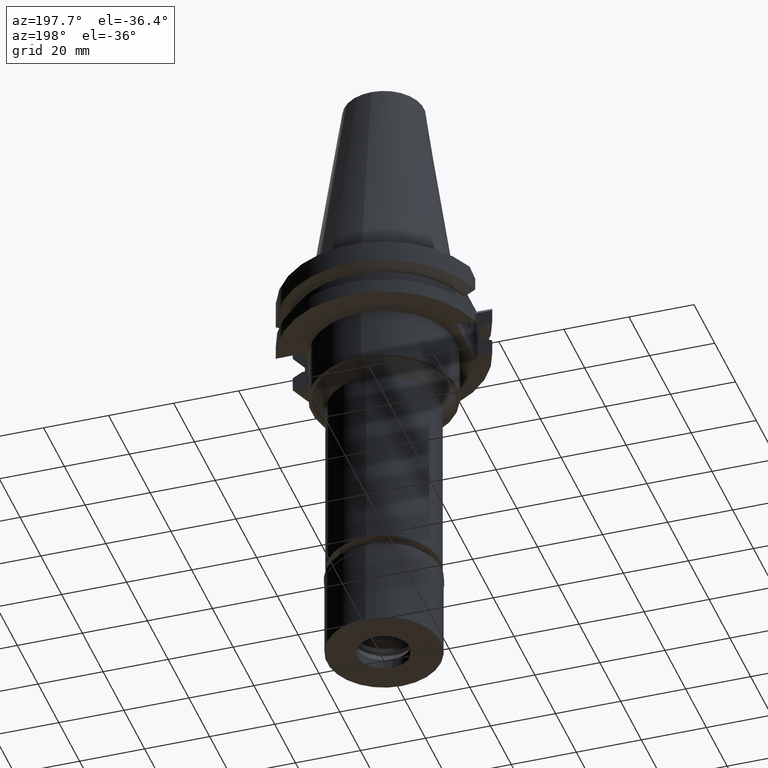
[diagram: clean part render]
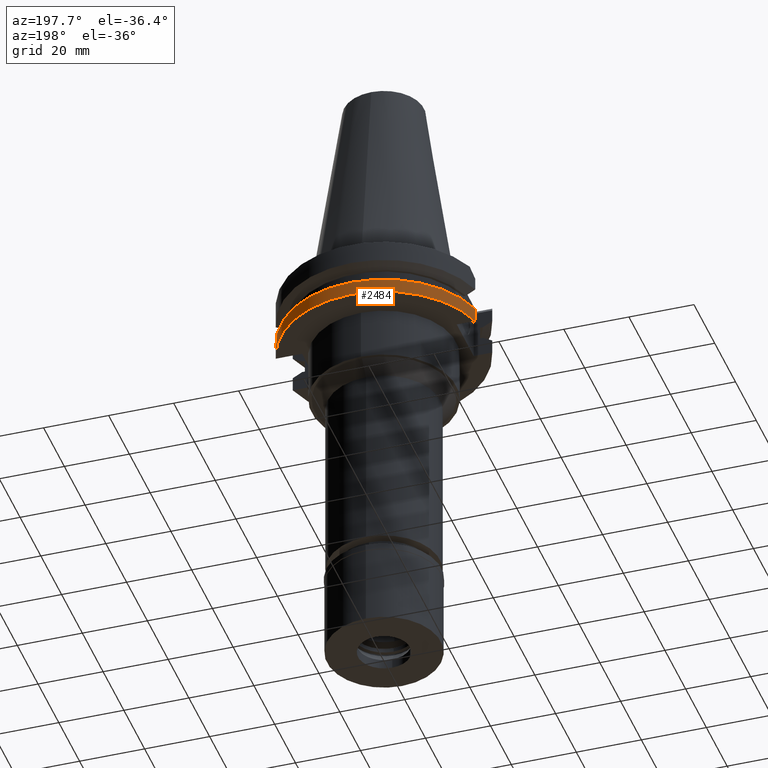
[diagram: same view with one face highlighted and labeled with its STEP entity id]
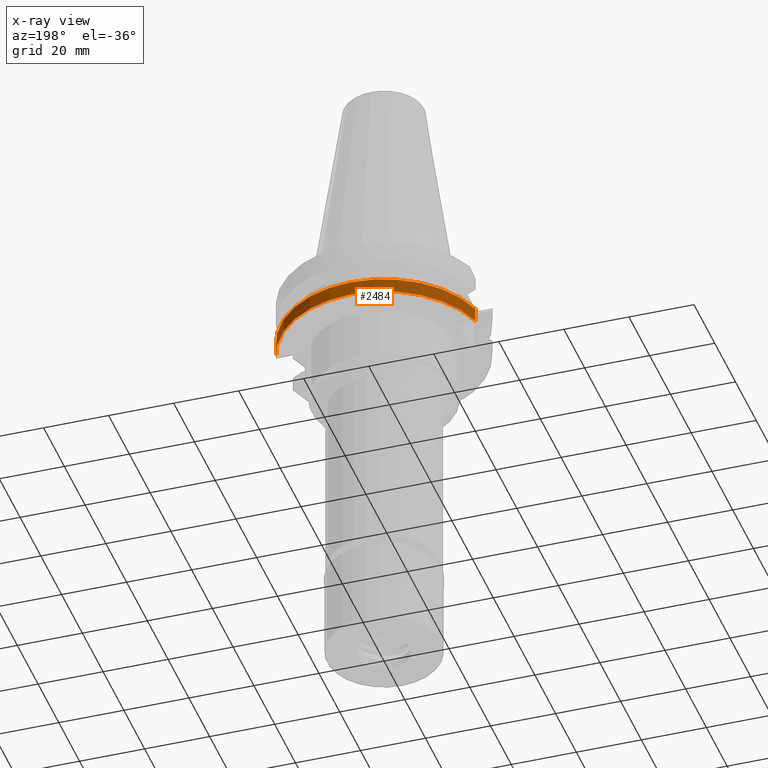
[diagram: x-ray of the same camera — body ghosted, the highlighted face saturated]
A machine part, auxiliary view. The second image highlights one B-rep face of the part: STEP entity #2484.
The next image is the same camera in x-ray: the body ghosted, the highlighted face saturated — about 0% of this face is hidden behind the body in this view.
In plain terms, the highlighted cylindrical surface (partial cylindrical patch) has radius 31.75 mm, axis along (0, 0, -1).
Its self-contained STEP definition (entity closure, byte-faithful):
#66 = DIRECTION ( 'NONE',  ( -3.682765214573927679E-08, -1.379378818080972175E-07, -0.9999999999999898970 ) ) ;
#67 = ORIENTED_EDGE ( 'NONE', *, *, #295, .F. ) ;
#81 = LINE ( 'NONE', #1559, #936 ) ;
#162 = FACE_OUTER_BOUND ( 'NONE', #2564, .T. ) ;
#295 = EDGE_CURVE ( 'NONE', #614, #2124, #81, .T. ) ;
#339 = CARTESIAN_POINT ( 'NONE',  ( -30.67550162588999640, 8.190000000000997815, -14.65366676908000088 ) ) ;
#446 = CYLINDRICAL_SURFACE ( 'NONE', #1110, 31.75000000000000000 ) ;
#465 = EDGE_CURVE ( 'NONE', #614, #1666, #1643, .T. ) ;
#546 = DIRECTION ( 'NONE',  ( -0.9661575315241073270, 0.2579527559055020958, 0.0000000000000000000 ) ) ;
#614 = VERTEX_POINT ( 'NONE', #339 ) ;
#752 = ORIENTED_EDGE ( 'NONE', *, *, #465, .T. ) ;
#936 = VECTOR ( 'NONE', #66, 999.9999999999998863 ) ;
#945 = CARTESIAN_POINT ( 'NONE',  ( 0.0000000000000000000, 0.0000000000000000000, 77.46250000000000568 ) ) ;
#1025 = CARTESIAN_POINT ( 'NONE',  ( 0.0000000000000000000, 0.0000000000000000000, -19.05000000000000071 ) ) ;
#1110 = AXIS2_PLACEMENT_3D ( 'NONE', #945, #1967, #3006 ) ;
#1296 = EDGE_CURVE ( 'NONE', #1361, #1666, #2678, .T. ) ;
#1361 = VERTEX_POINT ( 'NONE', #2180 ) ;
#1497 = CIRCLE ( 'NONE', #1853, 31.75000000000000000 ) ;
#1559 = CARTESIAN_POINT ( 'NONE',  ( -30.67550146397999811, 8.190000606419999940, -14.65367218816000161 ) ) ;
#1643 = CIRCLE ( 'NONE', #2059, 31.74999999999998579 ) ;
#1645 = CARTESIAN_POINT ( 'NONE',  ( 30.67550165945999652, 8.189999874275001090, -14.65366564559000118 ) ) ;
#1666 = VERTEX_POINT ( 'NONE', #1645 ) ;
#1671 = ORIENTED_EDGE ( 'NONE', *, *, #1296, .F. ) ;
#1695 = CARTESIAN_POINT ( 'NONE',  ( 30.67550162588999640, 8.189999999999999503, -19.05000000000000071 ) ) ;
#1773 = CARTESIAN_POINT ( 'NONE',  ( -30.67550162588999640, 8.189999999999999503, -19.05000000000000071 ) ) ;
#1853 = AXIS2_PLACEMENT_3D ( 'NONE', #1025, #2049, #3330 ) ;
#1967 = DIRECTION ( 'NONE',  ( 0.0000000000000000000, 0.0000000000000000000, -1.000000000000000000 ) ) ;
#2049 = DIRECTION ( 'NONE',  ( 0.0000000000000000000, 0.0000000000000000000, 1.000000000000000000 ) ) ;
#2059 = AXIS2_PLACEMENT_3D ( 'NONE', #2823, #2314, #546 ) ;
#2071 = VECTOR ( 'NONE', #2195, 1000.000000000000000 ) ;
#2124 = VERTEX_POINT ( 'NONE', #1773 ) ;
#2180 = CARTESIAN_POINT ( 'NONE',  ( 30.67550162588999640, 8.189999999999999503, -19.05000000000000071 ) ) ;
#2195 = DIRECTION ( 'NONE',  ( 7.635419674802996582E-09, -2.859776117947998731E-08, 0.9999999999999995559 ) ) ;
#2314 = DIRECTION ( 'NONE',  ( 0.0000000000000000000, 0.0000000000000000000, -1.000000000000000000 ) ) ;
#2419 = ORIENTED_EDGE ( 'NONE', *, *, #2591, .T. ) ;
#2484 = ADVANCED_FACE ( 'NONE', ( #162 ), #446, .T. ) ;
#2564 = EDGE_LOOP ( 'NONE', ( #1671, #2419, #67, #752 ) ) ;
#2591 = EDGE_CURVE ( 'NONE', #1361, #2124, #1497, .T. ) ;
#2678 = LINE ( 'NONE', #1695, #2071 ) ;
#2823 = CARTESIAN_POINT ( 'NONE',  ( 0.0000000000000000000, 0.0000000000000000000, -14.65366676908000088 ) ) ;
#3006 = DIRECTION ( 'NONE',  ( 0.0000000000000000000, -1.000000000000000000, 0.0000000000000000000 ) ) ;
#3330 = DIRECTION ( 'NONE',  ( 0.0000000000000000000, 1.000000000000000000, 0.0000000000000000000 ) ) ;